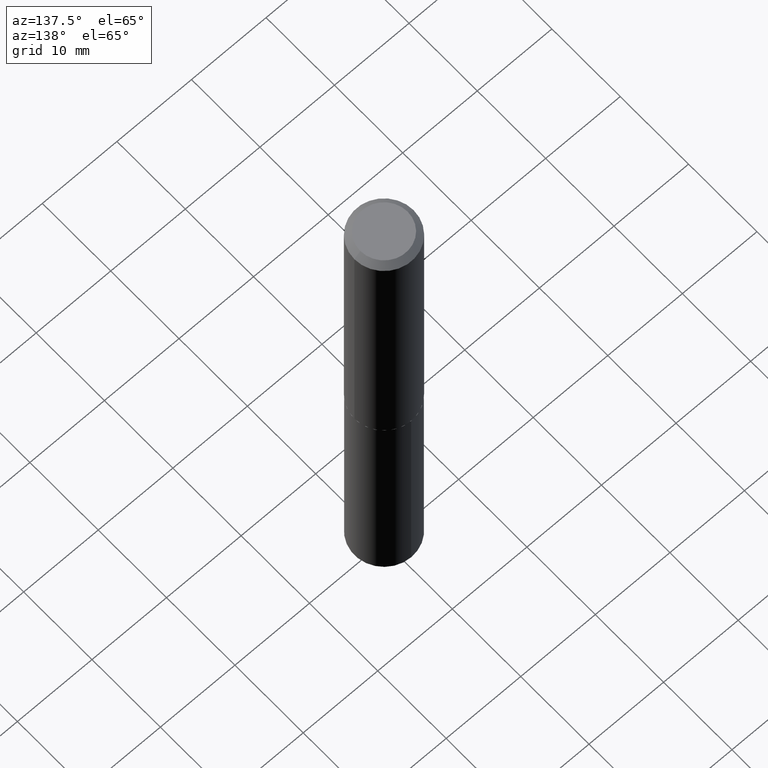
[diagram: clean part render]
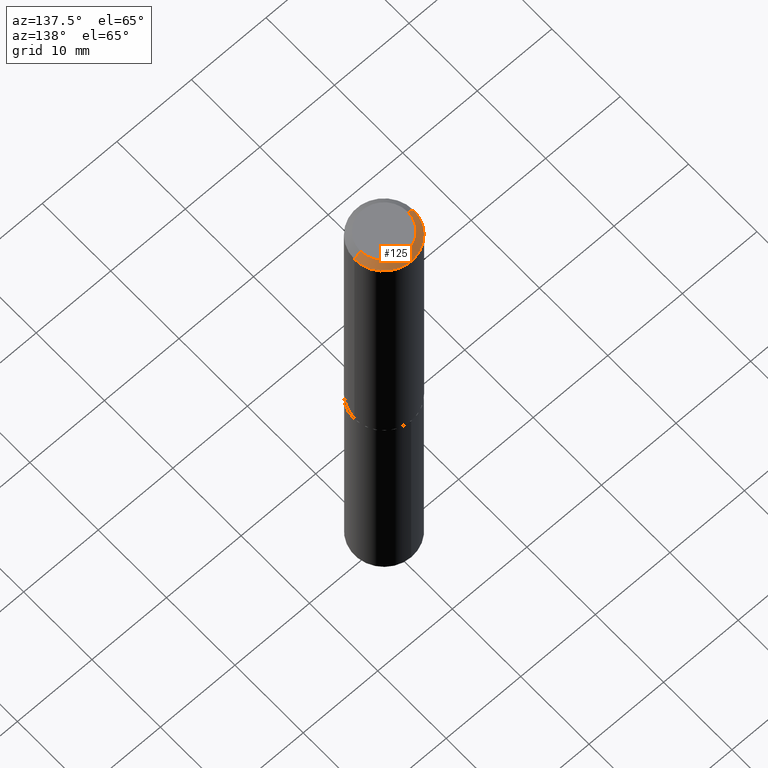
[diagram: same view with one face highlighted and labeled with its STEP entity id]
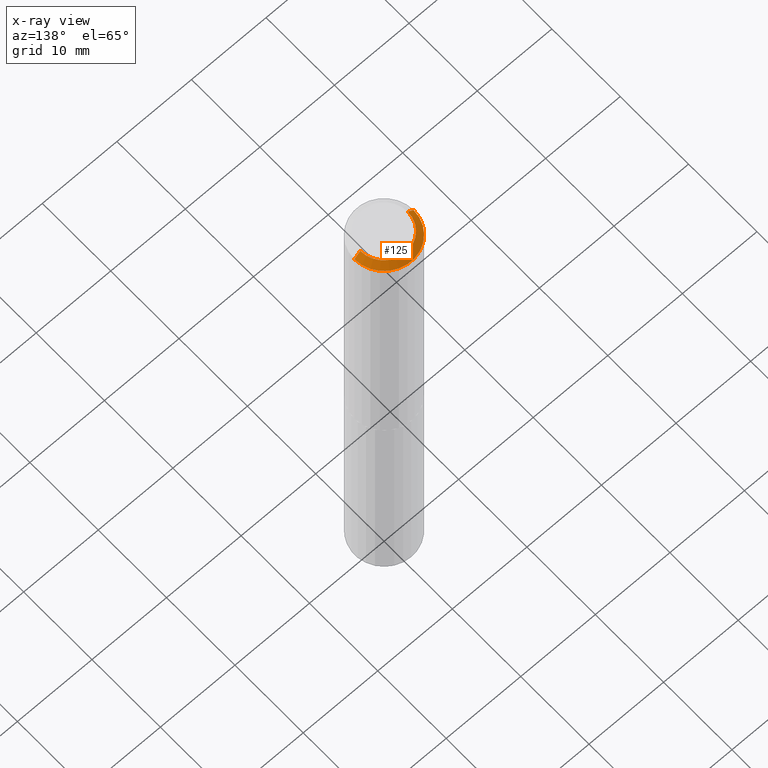
[diagram: x-ray of the same camera — body ghosted, the highlighted face saturated]
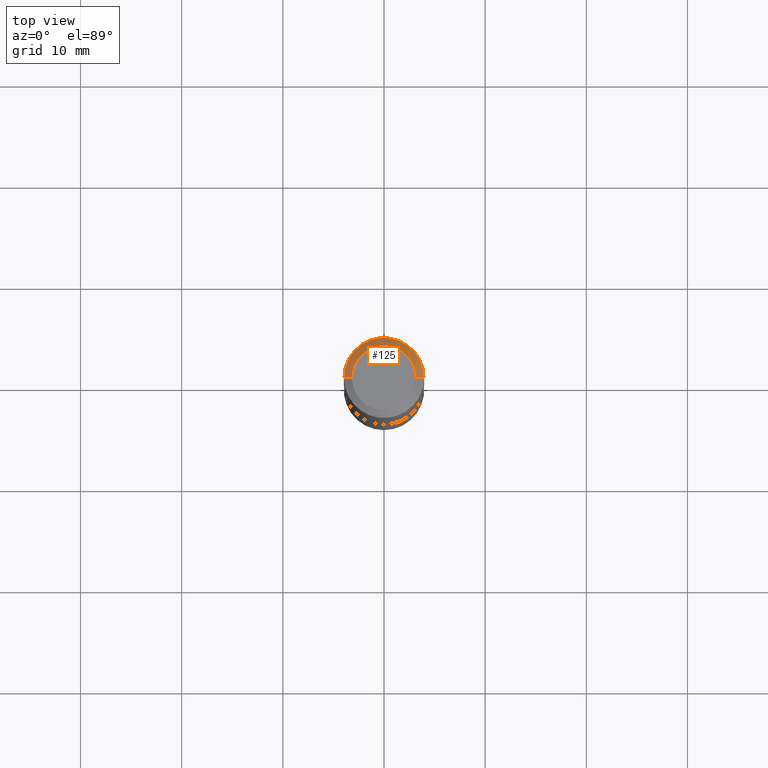
[diagram: same view with one face highlighted and labeled with its STEP entity id]
A machine part, auxiliary view. The second image highlights one B-rep face of the part: STEP entity #125.
The next image is the same camera in x-ray: the body ghosted, the highlighted face saturated — about 0% of this face is hidden behind the body in this view.
A second angle (top view) of the same face is appended — the face is thin or edge-on in the first view.
In plain terms, the highlighted conical surface has half-angle 45 deg.
Its self-contained STEP definition (entity closure, byte-faithful):
#5 = CARTESIAN_POINT ( 'NONE',  ( 7.642090019328604414E-31, -1.091087918388490513E-16, -0.03125000000000021511 ) ) ;
#18 = VERTEX_POINT ( 'NONE', #85 ) ;
#24 = CIRCLE ( 'NONE', #255, 0.1562500000000000000 ) ;
#29 = AXIS2_PLACEMENT_3D ( 'NONE', #5, #66, #375 ) ;
#33 = DIRECTION ( 'NONE',  ( -0.7071067811865451302, 2.468850131082231817E-15, -0.7071067811865499042 ) ) ;
#35 = CARTESIAN_POINT ( 'NONE',  ( -2.335971725809281346E-47, 3.335148527799648725E-33, 9.552245033349382783E-19 ) ) ;
#38 = CARTESIAN_POINT ( 'NONE',  ( -0.1250000000000000000, 9.274247306302067059E-16, 9.552245033286433763E-19 ) ) ;
#49 = VERTEX_POINT ( 'NONE', #296 ) ;
#52 = CONICAL_SURFACE ( 'NONE', #29, 0.1562500000000000000, 0.7853981633974449483 ) ;
#55 = CARTESIAN_POINT ( 'NONE',  ( 0.1250000000000000000, -1.019311926856046176E-15, 9.552245033415540403E-19 ) ) ;
#66 = DIRECTION ( 'NONE',  ( 2.445468806185136597E-29, -3.491481338843145583E-15, -1.000000000000000000 ) ) ;
#85 = CARTESIAN_POINT ( 'NONE',  ( -0.1562500000000000000, -1.562069505091914769E-15, -0.03125000000000021511 ) ) ;
#89 = CIRCLE ( 'NONE', #101, 0.1250000000000000000 ) ;
#94 = ORIENTED_EDGE ( 'NONE', *, *, #363, .T. ) ;
#99 = DIRECTION ( 'NONE',  ( 1.000000000000000000, -6.982962677686265133E-15, 0.000000000000000000 ) ) ;
#101 = AXIS2_PLACEMENT_3D ( 'NONE', #35, #273, #209 ) ;
#105 = LINE ( 'NONE', #259, #297 ) ;
#125 = ADVANCED_FACE ( 'NONE', ( #181 ), #52, .T. ) ;
#158 = VERTEX_POINT ( 'NONE', #38 ) ;
#180 = LINE ( 'NONE', #306, #304 ) ;
#181 = FACE_OUTER_BOUND ( 'NONE', #326, .T. ) ;
#182 = EDGE_CURVE ( 'NONE', #49, #18, #24, .T. ) ;
#197 = DIRECTION ( 'NONE',  ( 0.7071067811865451302, -7.319954787623248157E-15, -0.7071067811865499042 ) ) ;
#209 = DIRECTION ( 'NONE',  ( 1.000000000000000000, -6.982962677686266711E-15, 4.876147531933569011E-29 ) ) ;
#240 = EDGE_CURVE ( 'NONE', #158, #18, #180, .T. ) ;
#244 = EDGE_CURVE ( 'NONE', #261, #158, #89, .T. ) ;
#255 = AXIS2_PLACEMENT_3D ( 'NONE', #369, #372, #99 ) ;
#258 = ORIENTED_EDGE ( 'NONE', *, *, #244, .F. ) ;
#259 = CARTESIAN_POINT ( 'NONE',  ( 0.1562500000000000000, -1.181061603990650907E-15, -0.03125000000000021511 ) ) ;
#261 = VERTEX_POINT ( 'NONE', #55 ) ;
#273 = DIRECTION ( 'NONE',  ( -2.445468806185136597E-29, 3.491481338843145583E-15, 1.000000000000000000 ) ) ;
#296 = CARTESIAN_POINT ( 'NONE',  ( 0.1562500000000000000, -1.200196710227328077E-15, -0.03125000000000021511 ) ) ;
#297 = VECTOR ( 'NONE', #197, 39.37007874015748143 ) ;
#304 = VECTOR ( 'NONE', #33, 39.37007874015748143 ) ;
#306 = CARTESIAN_POINT ( 'NONE',  ( -0.1562500000000000000, 9.819791265496300729E-16, -0.03125000000000021511 ) ) ;
#326 = EDGE_LOOP ( 'NONE', ( #258, #94, #379, #371 ) ) ;
#363 = EDGE_CURVE ( 'NONE', #261, #49, #105, .T. ) ;
#369 = CARTESIAN_POINT ( 'NONE',  ( 7.642090019328604414E-31, -1.091087918388490513E-16, -0.03125000000000021511 ) ) ;
#371 = ORIENTED_EDGE ( 'NONE', *, *, #240, .F. ) ;
#372 = DIRECTION ( 'NONE',  ( -2.445468806185136597E-29, 3.491481338843145583E-15, 1.000000000000000000 ) ) ;
#375 = DIRECTION ( 'NONE',  ( -1.000000000000000000, 6.982962677686266711E-15, 0.000000000000000000 ) ) ;
#379 = ORIENTED_EDGE ( 'NONE', *, *, #182, .T. ) ;